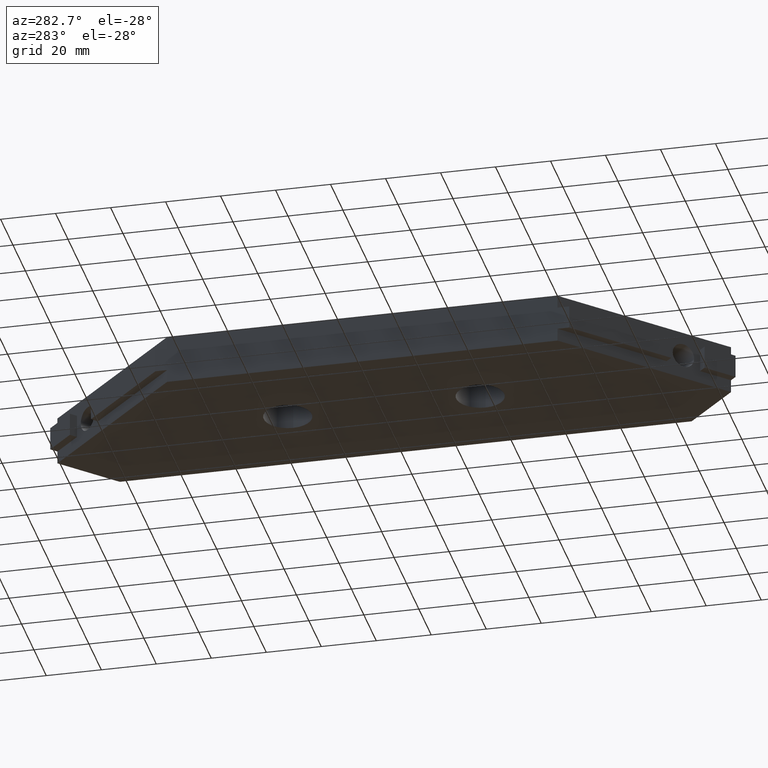
[diagram: clean part render]
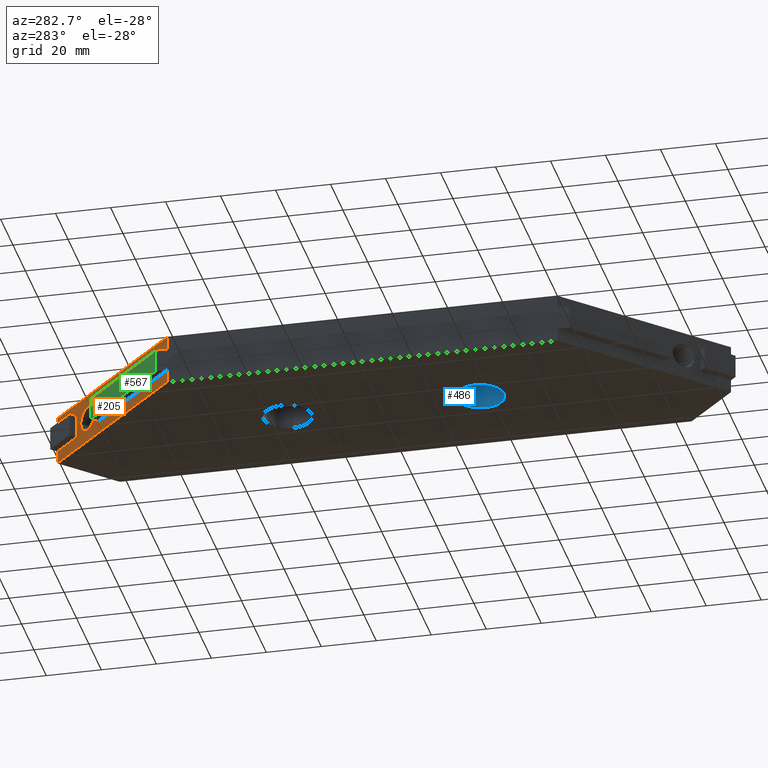
[diagram: same view with three faces highlighted in distinct colors, each labeled with its STEP entity id]
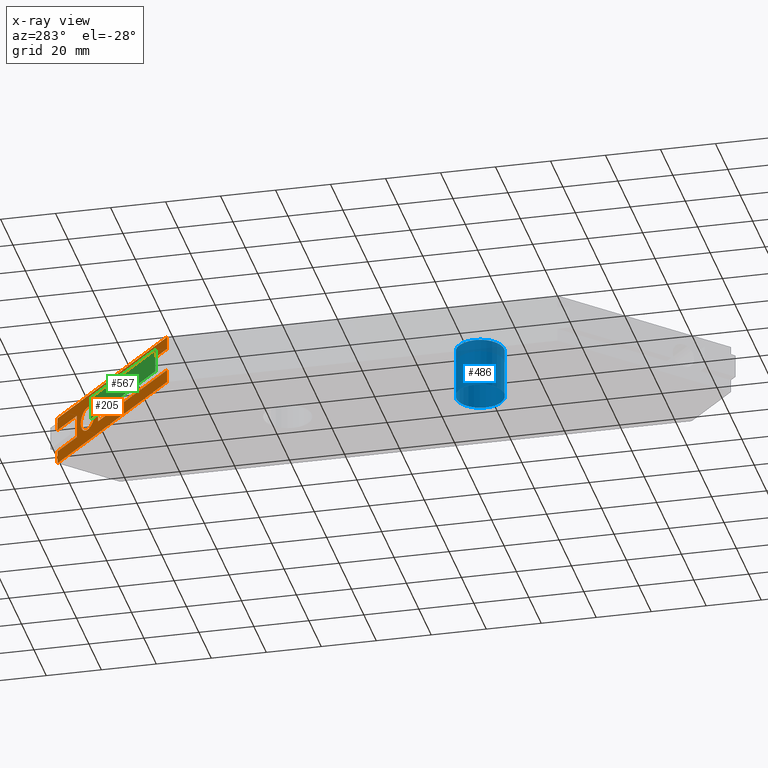
[diagram: x-ray of the same camera — body ghosted, the three highlighted faces saturated]
A machine part, auxiliary view with three faces highlighted in distinct colors.
The next image is the same camera in x-ray (body ghosted, the three faces saturated) — at least one of them is partly hidden behind the body in this view.
Their STEP definitions:

[orange] entity #205 — the highlighted planar face has unit normal (0.7071, -0.7071, 0).
#82=CARTESIAN_POINT('',(51.499999999793999,122.499999999510010,18.0));
#83=DIRECTION('',(0.707106781186548,-0.707106781186548,0.0));
#84=DIRECTION('',(-0.707106781186548,-0.707106781186548,0.0));
#85=AXIS2_PLACEMENT_3D('',#82,#83,#84);
#86=PLANE('',#85);
#87=CARTESIAN_POINT('',(51.499999999793999,122.499999999510010,18.0));
#88=VERTEX_POINT('',#87);
#89=CARTESIAN_POINT('',(51.499999999793999,122.499999999510010,13.250000000000000));
#90=VERTEX_POINT('',#89);
#91=CARTESIAN_POINT('',(51.499999999793999,122.499999999510010,18.0));
#92=DIRECTION('',(0.0,0.0,-1.0));
#93=VECTOR('',#92,4.750000000000000);
#94=LINE('',#91,#93);
#95=EDGE_CURVE('',#88,#90,#94,.T.);
#96=ORIENTED_EDGE('',*,*,#95,.T.);
#97=CARTESIAN_POINT('',(42.307611999830442,113.307611999546680,13.250000000000000));
#98=VERTEX_POINT('',#97);
#99=CARTESIAN_POINT('',(42.307611999830442,113.307611999546680,13.250000000000000));
#100=DIRECTION('',(0.707106781186556,0.707106781186539,0.0));
#101=VECTOR('',#100,12.999999780143991);
#102=LINE('',#99,#101);
#103=EDGE_CURVE('',#98,#90,#102,.T.);
#104=ORIENTED_EDGE('',*,*,#103,.F.);
#105=CARTESIAN_POINT('',(42.307611999830442,113.307611999546680,4.750000000000000));
#106=VERTEX_POINT('',#105);
#107=CARTESIAN_POINT('',(42.307611999830442,113.307611999546680,4.750000000000000));
#108=DIRECTION('',(0.0,0.0,1.0));
#109=VECTOR('',#108,8.500000000000000);
#110=LINE('',#107,#109);
#111=EDGE_CURVE('',#106,#98,#110,.T.);
#112=ORIENTED_EDGE('',*,*,#111,.F.);
#113=CARTESIAN_POINT('',(51.499999999793999,122.499999999510010,4.750000000000000));
#114=VERTEX_POINT('',#113);
#115=CARTESIAN_POINT('',(42.307611999830442,113.307611999546680,4.750000000000000));
#116=DIRECTION('',(0.707106781186556,0.707106781186539,0.0));
#117=VECTOR('',#116,12.999999780143991);
#118=LINE('',#115,#117);
#119=EDGE_CURVE('',#106,#114,#118,.T.);
#120=ORIENTED_EDGE('',*,*,#119,.T.);
#121=CARTESIAN_POINT('',(51.499999999793999,122.499999999510010,0.0));
#122=VERTEX_POINT('',#121);
#123=CARTESIAN_POINT('',(51.499999999793999,122.499999999510010,4.750000000000000));
#124=DIRECTION('',(0.0,0.0,-1.0));
#125=VECTOR('',#124,4.750000000000000);
#126=LINE('',#123,#125);
#127=EDGE_CURVE('',#114,#122,#126,.T.);
#128=ORIENTED_EDGE('',*,*,#127,.T.);
#129=CARTESIAN_POINT('',(0.0,70.999999999716010,0.0));
#130=VERTEX_POINT('',#129);
#131=CARTESIAN_POINT('',(51.499999999793999,122.499999999510010,0.0));
#132=DIRECTION('',(-0.707106781186548,-0.707106781186548,0.0));
#133=VECTOR('',#132,72.831998461923064);
#134=LINE('',#131,#133);
#135=EDGE_CURVE('',#122,#130,#134,.T.);
#136=ORIENTED_EDGE('',*,*,#135,.T.);
#137=CARTESIAN_POINT('',(-2.842171E-014,70.999999999716010,4.750000000000000));
#138=VERTEX_POINT('',#137);
#139=CARTESIAN_POINT('',(0.0,70.999999999716010,4.750000000000000));
#140=DIRECTION('',(0.0,0.0,-1.0));
#141=VECTOR('',#140,4.750000000000000);
#142=LINE('',#139,#141);
#143=EDGE_CURVE('',#138,#130,#142,.T.);
#144=ORIENTED_EDGE('',*,*,#143,.F.);
#145=CARTESIAN_POINT('',(32.408116999870344,103.408116999586350,4.750000000000000));
#146=VERTEX_POINT('',#145);
#147=CARTESIAN_POINT('',(-2.842171E-014,70.999999999716010,4.750000000000000));
#148=DIRECTION('',(0.707106781186548,0.707106781186547,0.0));
#149=VECTOR('',#148,45.831998592190722);
#150=LINE('',#147,#149);
#151=EDGE_CURVE('',#138,#146,#150,.T.);
#152=ORIENTED_EDGE('',*,*,#151,.T.);
#153=CARTESIAN_POINT('',(32.408116999870344,103.408116999586350,13.250000000000000));
#154=VERTEX_POINT('',#153);
#155=CARTESIAN_POINT('',(32.408116999870344,103.408116999586350,4.750000000000000));
#156=DIRECTION('',(0.0,0.0,1.0));
#157=VECTOR('',#156,8.500000000000000);
#158=LINE('',#155,#157);
#159=EDGE_CURVE('',#146,#154,#158,.T.);
#160=ORIENTED_EDGE('',*,*,#159,.T.);
#161=CARTESIAN_POINT('',(-2.842171E-014,70.999999999716010,13.250000000000000));
#162=VERTEX_POINT('',#161);
#163=CARTESIAN_POINT('',(-2.842171E-014,70.999999999716010,13.250000000000000));
#164=DIRECTION('',(0.707106781186548,0.707106781186547,0.0));
#165=VECTOR('',#164,45.831998592190722);
#166=LINE('',#163,#165);
#167=EDGE_CURVE('',#162,#154,#166,.T.);
#168=ORIENTED_EDGE('',*,*,#167,.F.);
#169=CARTESIAN_POINT('',(0.0,70.999999999716010,18.0));
#170=VERTEX_POINT('',#169);
#171=CARTESIAN_POINT('',(0.0,70.999999999716010,18.0));
#172=DIRECTION('',(0.0,0.0,-1.0));
#173=VECTOR('',#172,4.750000000000000);
#174=LINE('',#171,#173);
#175=EDGE_CURVE('',#170,#162,#174,.T.);
#176=ORIENTED_EDGE('',*,*,#175,.F.);
#177=CARTESIAN_POINT('',(51.499999999793999,122.499999999510010,18.0));
#178=DIRECTION('',(-0.707106781186548,-0.707106781186548,0.0));
#179=VECTOR('',#178,72.831998461923064);
#180=LINE('',#177,#179);
#181=EDGE_CURVE('',#88,#170,#180,.T.);
#182=ORIENTED_EDGE('',*,*,#181,.F.);
#183=EDGE_LOOP('',(#96,#104,#112,#120,#128,#136,#144,#152,#160,#168,#176,#182));
#184=FACE_OUTER_BOUND('',#183,.T.);
#185=CARTESIAN_POINT('',(40.539845030542139,111.539845030258120,9.0));
#186=VERTEX_POINT('',#185);
#187=CARTESIAN_POINT('',(34.175883999863146,105.175883999579130,9.0));
#188=VERTEX_POINT('',#187);
#189=CARTESIAN_POINT('',(37.357864515202650,108.357864514918630,9.0));
#190=DIRECTION('',(-0.707106781186548,0.707106781186548,0.0));
#191=DIRECTION('',(-0.707106781186548,-0.707106781186548,0.0));
#192=AXIS2_PLACEMENT_3D('',#189,#190,#191);
#193=CIRCLE('',#192,4.500000000000036);
#194=EDGE_CURVE('',#186,#188,#193,.T.);
#195=ORIENTED_EDGE('',*,*,#194,.F.);
#196=CARTESIAN_POINT('',(37.357864515202650,108.357864514918630,9.0));
#197=DIRECTION('',(-0.707106781186548,0.707106781186548,0.0));
#198=DIRECTION('',(-0.707106781186548,-0.707106781186548,0.0));
#199=AXIS2_PLACEMENT_3D('',#196,#197,#198);
#200=CIRCLE('',#199,4.500000000000036);
#201=EDGE_CURVE('',#188,#186,#200,.T.);
#202=ORIENTED_EDGE('',*,*,#201,.F.);
#203=EDGE_LOOP('',(#195,#202));
#204=FACE_BOUND('',#203,.T.);
#205=ADVANCED_FACE('',(#184,#204),#86,.F.);

[blue] entity #486 — the highlighted cylindrical surface (bore or boss wall) has radius 8.75 mm, axis along (0, 0, 1).
#358=CARTESIAN_POINT('',(26.249999999859938,-34.999999999860165,18.0));
#359=VERTEX_POINT('',#358);
#360=CARTESIAN_POINT('',(43.749999999859938,-34.999999999860165,18.0));
#361=VERTEX_POINT('',#360);
#362=CARTESIAN_POINT('',(34.999999999859938,-34.999999999860165,18.0));
#363=DIRECTION('',(0.0,0.0,1.0));
#364=DIRECTION('',(1.0,0.0,0.0));
#365=AXIS2_PLACEMENT_3D('',#362,#363,#364);
#366=CIRCLE('',#365,8.750000000000000);
#367=EDGE_CURVE('',#359,#361,#366,.T.);
#369=CARTESIAN_POINT('',(34.999999999859938,-34.999999999860165,18.0));
#370=DIRECTION('',(0.0,0.0,1.0));
#371=DIRECTION('',(1.0,0.0,0.0));
#372=AXIS2_PLACEMENT_3D('',#369,#370,#371);
#373=CIRCLE('',#372,8.750000000000000);
#374=EDGE_CURVE('',#361,#359,#373,.T.);
#427=CARTESIAN_POINT('',(26.249999999859938,-34.999999999860165,0.0));
#428=VERTEX_POINT('',#427);
#429=CARTESIAN_POINT('',(43.749999999859938,-34.999999999860165,0.0));
#430=VERTEX_POINT('',#429);
#431=CARTESIAN_POINT('',(34.999999999859938,-34.999999999860165,0.0));
#432=DIRECTION('',(0.0,0.0,-1.0));
#433=DIRECTION('',(1.0,0.0,0.0));
#434=AXIS2_PLACEMENT_3D('',#431,#432,#433);
#435=CIRCLE('',#434,8.750000000000000);
#436=EDGE_CURVE('',#428,#430,#435,.T.);
#438=CARTESIAN_POINT('',(34.999999999859938,-34.999999999860165,0.0));
#439=DIRECTION('',(0.0,0.0,-1.0));
#440=DIRECTION('',(1.0,0.0,0.0));
#441=AXIS2_PLACEMENT_3D('',#438,#439,#440);
#442=CIRCLE('',#441,8.750000000000000);
#443=EDGE_CURVE('',#430,#428,#442,.T.);
#468=CARTESIAN_POINT('',(34.999999999859938,-34.999999999860165,18.0));
#469=DIRECTION('',(0.0,0.0,1.0));
#470=DIRECTION('',(1.0,0.0,0.0));
#471=AXIS2_PLACEMENT_3D('',#468,#469,#470);
#472=CYLINDRICAL_SURFACE('',#471,8.750000000000000);
#473=CARTESIAN_POINT('',(43.749999999859938,-34.999999999860165,18.0));
#474=DIRECTION('',(0.0,0.0,-1.0));
#475=VECTOR('',#474,18.0);
#476=LINE('',#473,#475);
#477=EDGE_CURVE('',#361,#430,#476,.T.);
#478=ORIENTED_EDGE('',*,*,#477,.T.);
#479=ORIENTED_EDGE('',*,*,#443,.T.);
#480=ORIENTED_EDGE('',*,*,#436,.T.);
#481=ORIENTED_EDGE('',*,*,#477,.F.);
#482=ORIENTED_EDGE('',*,*,#374,.T.);
#483=ORIENTED_EDGE('',*,*,#367,.T.);
#484=EDGE_LOOP('',(#478,#479,#480,#481,#482,#483));
#485=FACE_OUTER_BOUND('',#484,.T.);
#486=ADVANCED_FACE('',(#485),#472,.F.);

[green] entity #567 — the highlighted planar face has unit normal (-0.7071, 0.7071, 0).
#511=CARTESIAN_POINT('',(30.286796999878803,105.529436999577850,4.750000000000000));
#512=VERTEX_POINT('',#511);
#513=CARTESIAN_POINT('',(30.286796999878803,105.529436999577850,13.250000000000000));
#514=VERTEX_POINT('',#513);
#515=CARTESIAN_POINT('',(30.286796999878803,105.529436999577850,4.750000000000000));
#516=DIRECTION('',(0.0,0.0,1.0));
#517=VECTOR('',#516,8.500000000000000);
#518=LINE('',#515,#517);
#519=EDGE_CURVE('',#512,#514,#518,.T.);
#537=CARTESIAN_POINT('',(30.286796999878803,105.529436999577850,4.750000000000000));
#538=DIRECTION('',(-0.707106769513032,0.707106792860063,0.0));
#539=DIRECTION('',(-0.707106792860063,-0.707106769513032,0.0));
#540=AXIS2_PLACEMENT_3D('',#537,#538,#539);
#541=PLANE('',#540);
#542=CARTESIAN_POINT('',(-2.842171E-014,75.242640999699006,4.750000000000000));
#543=VERTEX_POINT('',#542);
#544=CARTESIAN_POINT('',(30.286796999878803,105.529436999577850,4.750000000000000));
#545=DIRECTION('',(-0.707106792860063,-0.707106769513032,0.0));
#546=VECTOR('',#545,42.831998370962644);
#547=LINE('',#544,#546);
#548=EDGE_CURVE('',#512,#543,#547,.T.);
#549=ORIENTED_EDGE('',*,*,#548,.T.);
#550=CARTESIAN_POINT('',(-2.842171E-014,75.242640999699006,13.250000000000000));
#551=VERTEX_POINT('',#550);
#552=CARTESIAN_POINT('',(-2.842171E-014,75.242640999699006,4.750000000000000));
#553=DIRECTION('',(0.0,0.0,1.0));
#554=VECTOR('',#553,8.500000000000000);
#555=LINE('',#552,#554);
#556=EDGE_CURVE('',#543,#551,#555,.T.);
#557=ORIENTED_EDGE('',*,*,#556,.T.);
#558=CARTESIAN_POINT('',(30.286796999878803,105.529436999577850,13.250000000000000));
#559=DIRECTION('',(-0.707106792860063,-0.707106769513032,0.0));
#560=VECTOR('',#559,42.831998370962644);
#561=LINE('',#558,#560);
#562=EDGE_CURVE('',#514,#551,#561,.T.);
#563=ORIENTED_EDGE('',*,*,#562,.F.);
#564=ORIENTED_EDGE('',*,*,#519,.F.);
#565=EDGE_LOOP('',(#549,#557,#563,#564));
#566=FACE_OUTER_BOUND('',#565,.T.);
#567=ADVANCED_FACE('',(#566),#541,.T.);